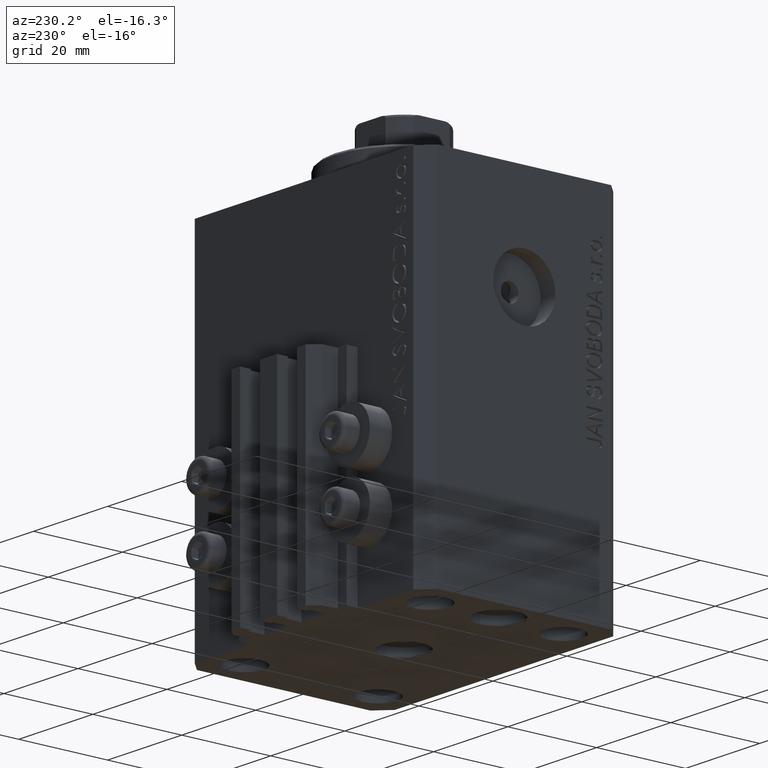
[diagram: clean part render]
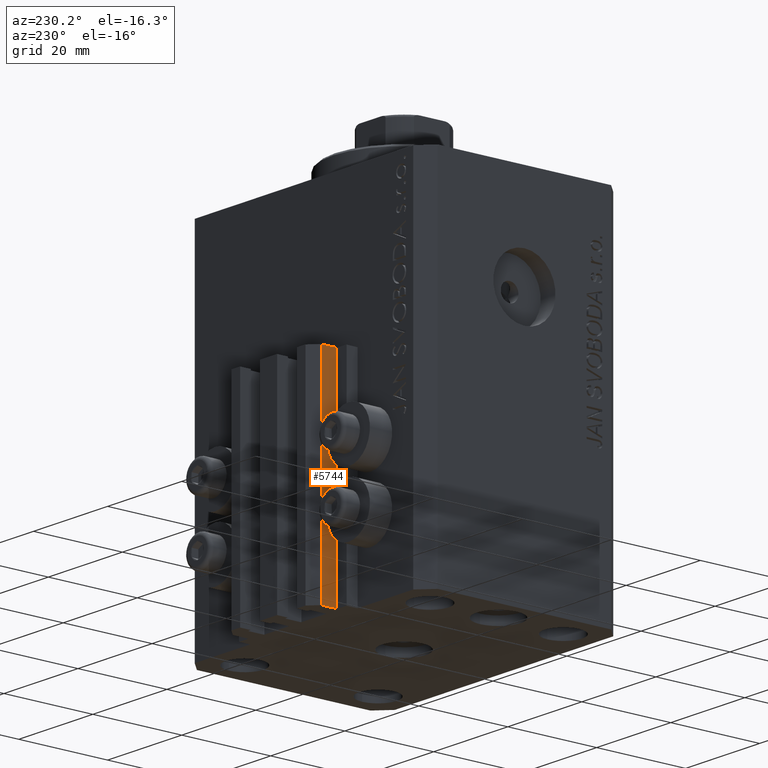
[diagram: same view with one face highlighted and labeled with its STEP entity id]
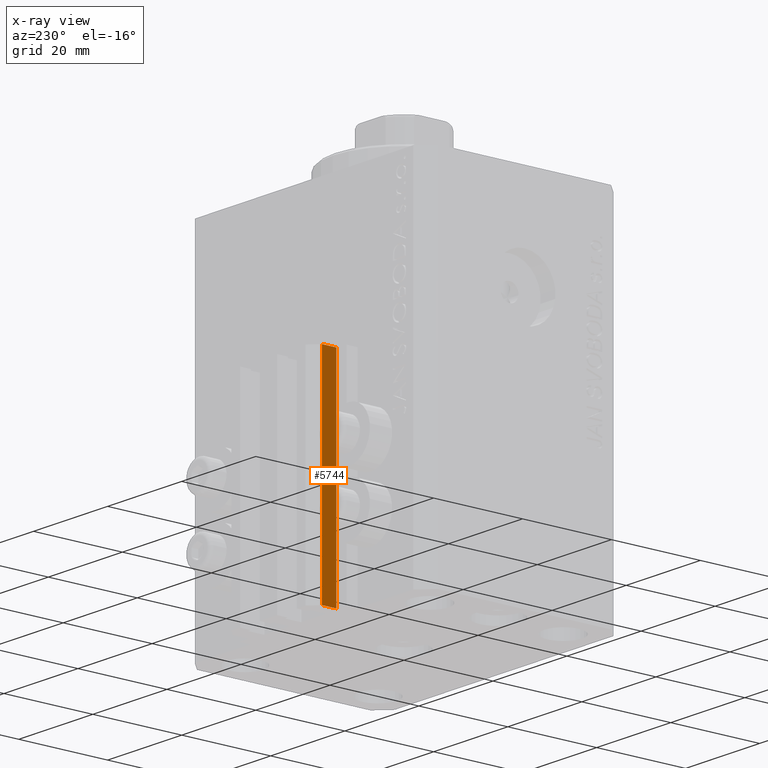
[diagram: x-ray of the same camera — body ghosted, the highlighted face saturated]
A machine part, auxiliary view. The second image highlights one B-rep face of the part: STEP entity #5744.
The next image is the same camera in x-ray: the body ghosted, the highlighted face saturated — about 0% of this face is hidden behind the body in this view.
In plain terms, the highlighted planar face has unit normal (-1, 0, 0).
Its self-contained STEP definition (entity closure, byte-faithful):
#467 = AXIS2_PLACEMENT_3D ( 'NONE', #24367, #35632, #27491 ) ;
#538 = EDGE_CURVE ( 'NONE', #38770, #23910, #5338, .T. ) ;
#1723 = DIRECTION ( 'NONE',  ( 0.000000000000000000, -1.000000000000000000, 0.000000000000000000 ) ) ;
#1819 = LINE ( 'NONE', #38555, #20389 ) ;
#2112 = ORIENTED_EDGE ( 'NONE', *, *, #24029, .F. ) ;
#2234 = CARTESIAN_POINT ( 'NONE',  ( -12.00000000000000000, 28.49999999999948841, -80.00000000000000000 ) ) ;
#4861 = EDGE_CURVE ( 'NONE', #22894, #24575, #1819, .T. ) ;
#5338 = LINE ( 'NONE', #19995, #37038 ) ;
#5384 = DIRECTION ( 'NONE',  ( 0.000000000000000000, 0.000000000000000000, 1.000000000000000000 ) ) ;
#5596 = LINE ( 'NONE', #2234, #5849 ) ;
#5744 = ADVANCED_FACE ( 'NONE', ( #9709 ), #42587, .T. ) ;
#5849 = VECTOR ( 'NONE', #27457, 1000.000000000000000 ) ;
#8296 = ORIENTED_EDGE ( 'NONE', *, *, #4861, .T. ) ;
#9709 = FACE_OUTER_BOUND ( 'NONE', #42862, .T. ) ;
#11424 = CARTESIAN_POINT ( 'NONE',  ( -12.00000000000000000, 28.49999999999948841, -33.00000000000000000 ) ) ;
#13104 = CARTESIAN_POINT ( 'NONE',  ( -12.00000000000000000, 28.49999999999948841, -80.00000000000000000 ) ) ;
#19995 = CARTESIAN_POINT ( 'NONE',  ( -12.00000000000000000, 28.49999999999948841, -33.00000000000000000 ) ) ;
#20319 = DIRECTION ( 'NONE',  ( 0.000000000000000000, -1.000000000000000000, 0.000000000000000000 ) ) ;
#20389 = VECTOR ( 'NONE', #20319, 1000.000000000000000 ) ;
#22894 = VERTEX_POINT ( 'NONE', #13104 ) ;
#23258 = CARTESIAN_POINT ( 'NONE',  ( -12.00000000000000000, 25.19999999999949125, -80.00000000000000000 ) ) ;
#23910 = VERTEX_POINT ( 'NONE', #33718 ) ;
#24029 = EDGE_CURVE ( 'NONE', #22894, #38770, #5596, .T. ) ;
#24367 = CARTESIAN_POINT ( 'NONE',  ( -12.00000000000000000, 28.49999999999948841, -80.00000000000000000 ) ) ;
#24575 = VERTEX_POINT ( 'NONE', #23258 ) ;
#25568 = ORIENTED_EDGE ( 'NONE', *, *, #538, .F. ) ;
#27457 = DIRECTION ( 'NONE',  ( 0.000000000000000000, 0.000000000000000000, 1.000000000000000000 ) ) ;
#27491 = DIRECTION ( 'NONE',  ( 0.000000000000000000, 0.000000000000000000, 1.000000000000000000 ) ) ;
#29299 = EDGE_CURVE ( 'NONE', #24575, #23910, #30359, .T. ) ;
#30359 = LINE ( 'NONE', #44985, #44029 ) ;
#33718 = CARTESIAN_POINT ( 'NONE',  ( -12.00000000000000000, 25.19999999999949125, -33.00000000000000000 ) ) ;
#35632 = DIRECTION ( 'NONE',  ( -1.000000000000000000, 0.000000000000000000, 0.000000000000000000 ) ) ;
#37038 = VECTOR ( 'NONE', #1723, 1000.000000000000000 ) ;
#38555 = CARTESIAN_POINT ( 'NONE',  ( -12.00000000000000000, 28.49999999999948841, -80.00000000000000000 ) ) ;
#38770 = VERTEX_POINT ( 'NONE', #11424 ) ;
#42587 = PLANE ( 'NONE',  #467 ) ;
#42862 = EDGE_LOOP ( 'NONE', ( #25568, #2112, #8296, #44740 ) ) ;
#44029 = VECTOR ( 'NONE', #5384, 1000.000000000000000 ) ;
#44740 = ORIENTED_EDGE ( 'NONE', *, *, #29299, .T. ) ;
#44985 = CARTESIAN_POINT ( 'NONE',  ( -12.00000000000000000, 25.19999999999949125, -80.00000000000000000 ) ) ;